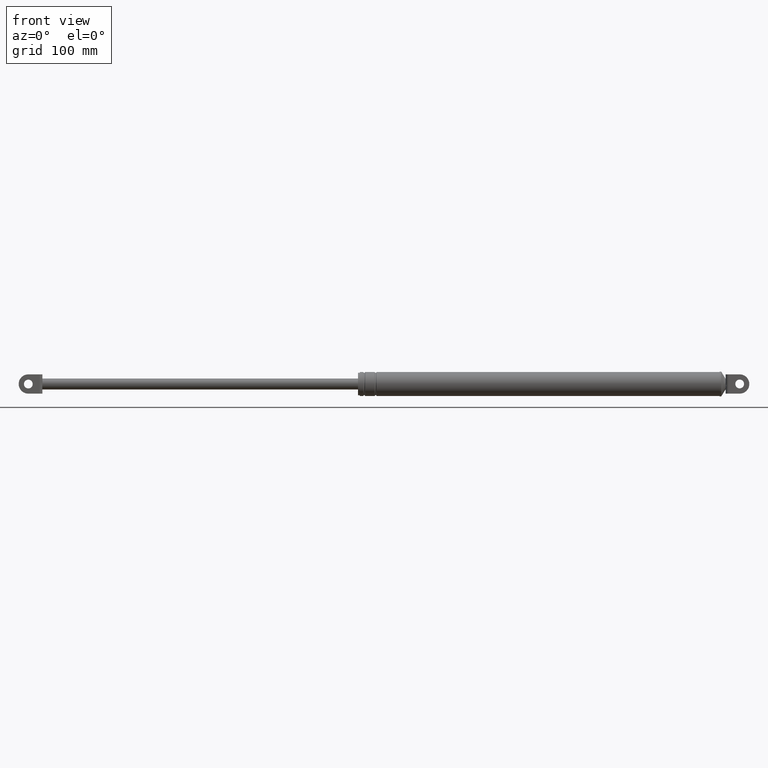
[diagram: clean part render]
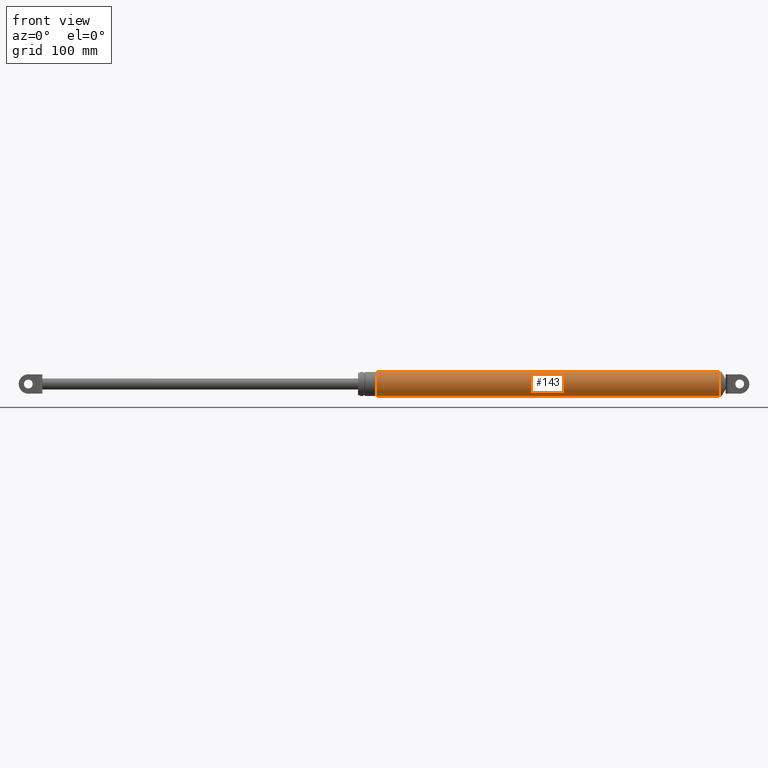
[diagram: same view with one face highlighted and labeled with its STEP entity id]
A machine part, front view. The second image highlights one B-rep face of the part: STEP entity #143.
In plain terms, the highlighted cylindrical surface (edge-blend (fillet) strip) has radius 13.7 mm, axis along (1, 0, 0).
Its self-contained STEP definition (entity closure, byte-faithful):
#143=ADVANCED_FACE('',(#493),#492,.T.);
#492=CYLINDRICAL_SURFACE('',#1166,1.37000000000E+001);
#493=FACE_OUTER_BOUND('',#1167,.T.);
#1163=CARTESIAN_POINT('',(0.00000000000E+000,0.00000000000E+000,1.65677123967E+002));
#1164=DIRECTION('',(1.00000000000E+000,-0.00000000000E+000,-0.00000000000E+000));
#1165=DIRECTION('',(0.00000000000E+000,0.00000000000E+000,-1.00000000000E+000));
#1166=AXIS2_PLACEMENT_3D('',#1163,#1164,#1165);
#1167=EDGE_LOOP('',(#1544,#1545,#1546,#1547));
#1544=ORIENTED_EDGE('',*,*,#1789,.F.);
#1545=ORIENTED_EDGE('',*,*,#1790,.T.);
#1546=ORIENTED_EDGE('',*,*,#1768,.T.);
#1547=ORIENTED_EDGE('',*,*,#1791,.F.);
#1768=EDGE_CURVE('',#2268,#2269,#2270,.T.);
#1789=EDGE_CURVE('',#2373,#2372,#2406,.T.);
#1790=EDGE_CURVE('',#2373,#2268,#2412,.T.);
#1791=EDGE_CURVE('',#2372,#2269,#2418,.T.);
#2268=VERTEX_POINT('',#3168);
#2269=VERTEX_POINT('',#3169);
#2270=CIRCLE('',#3173,1.37000000000E+001);
#2372=VERTEX_POINT('',#3232);
#2373=VERTEX_POINT('',#3233);
#2406=CIRCLE('',#3263,1.37000000000E+001);
#2412=(BOUNDED_CURVE() B_SPLINE_CURVE(1,(#3264,#3265),.UNSPECIFIED.,.F.,.F.) B_SPLINE_CURVE_WITH_KNOTS((2,2),(2.43902438325E-002,9.75609756186E-001),.UNSPECIFIED.) CURVE() GEOMETRIC_REPRESENTATION_ITEM() RATIONAL_B_SPLINE_CURVE((1.00000000000E+000,1.00000000000E+000)) REPRESENTATION_ITEM('') );
#2418=(BOUNDED_CURVE() B_SPLINE_CURVE(1,(#3266,#3267),.UNSPECIFIED.,.F.,.F.) B_SPLINE_CURVE_WITH_KNOTS((2,2),(2.43902439024E-002,9.75609756098E-001),.UNSPECIFIED.) CURVE() GEOMETRIC_REPRESENTATION_ITEM() RATIONAL_B_SPLINE_CURVE((7.50000000000E-001,7.50000000000E-001)) REPRESENTATION_ITEM('') );
#3168=CARTESIAN_POINT('',(5.71056351870E+002,0.00000000000E+000,1.51977123967E+002));
#3169=CARTESIAN_POINT('',(5.71056351870E+002,0.00000000000E+000,1.79377123967E+002));
#3170=CARTESIAN_POINT('',(5.71056351870E+002,0.00000000000E+000,1.65677123967E+002));
#3171=DIRECTION('',(-1.00000000000E+000,0.00000000000E+000,0.00000000000E+000));
#3172=DIRECTION('',(0.00000000000E+000,-1.22460635382E-016,1.00000000000E+000));
#3173=AXIS2_PLACEMENT_3D('',#3170,#3171,#3172);
#3232=CARTESIAN_POINT('',(1.81056351870E+002,0.00000000000E+000,1.79377123967E+002));
#3233=CARTESIAN_POINT('',(1.81056351870E+002,0.00000000000E+000,1.51977123967E+002));
#3260=CARTESIAN_POINT('',(1.81056351870E+002,0.00000000000E+000,1.65677123967E+002));
#3261=DIRECTION('',(-1.00000000000E+000,0.00000000000E+000,0.00000000000E+000));
#3262=DIRECTION('',(0.00000000000E+000,-1.22460635382E-016,1.00000000000E+000));
#3263=AXIS2_PLACEMENT_3D('',#3260,#3261,#3262);
#3264=CARTESIAN_POINT('',(1.81056351842E+002,0.00000000000E+000,1.51977123967E+002));
#3265=CARTESIAN_POINT('',(5.71056351907E+002,0.00000000000E+000,1.51977123967E+002));
#3266=CARTESIAN_POINT('',(1.81056351870E+002,-5.92118946467E-016,1.79377123967E+002));
#3267=CARTESIAN_POINT('',(5.71056351870E+002,-5.92118946467E-016,1.79377123967E+002));